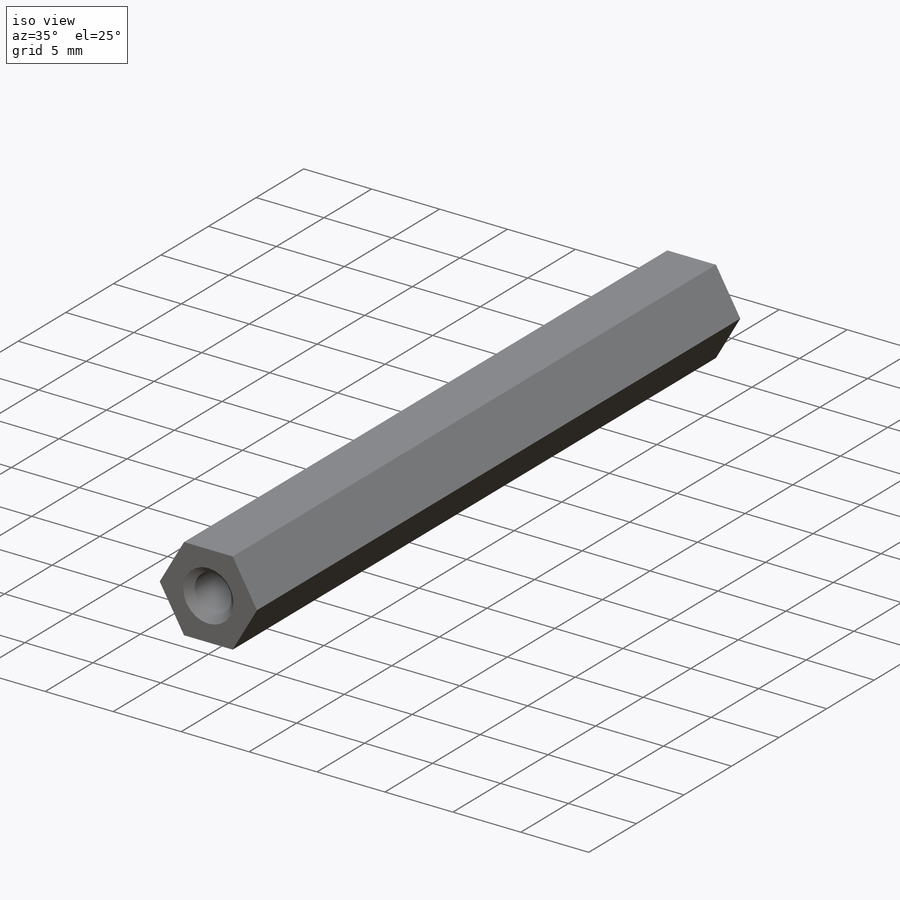
[diagram: iso view]
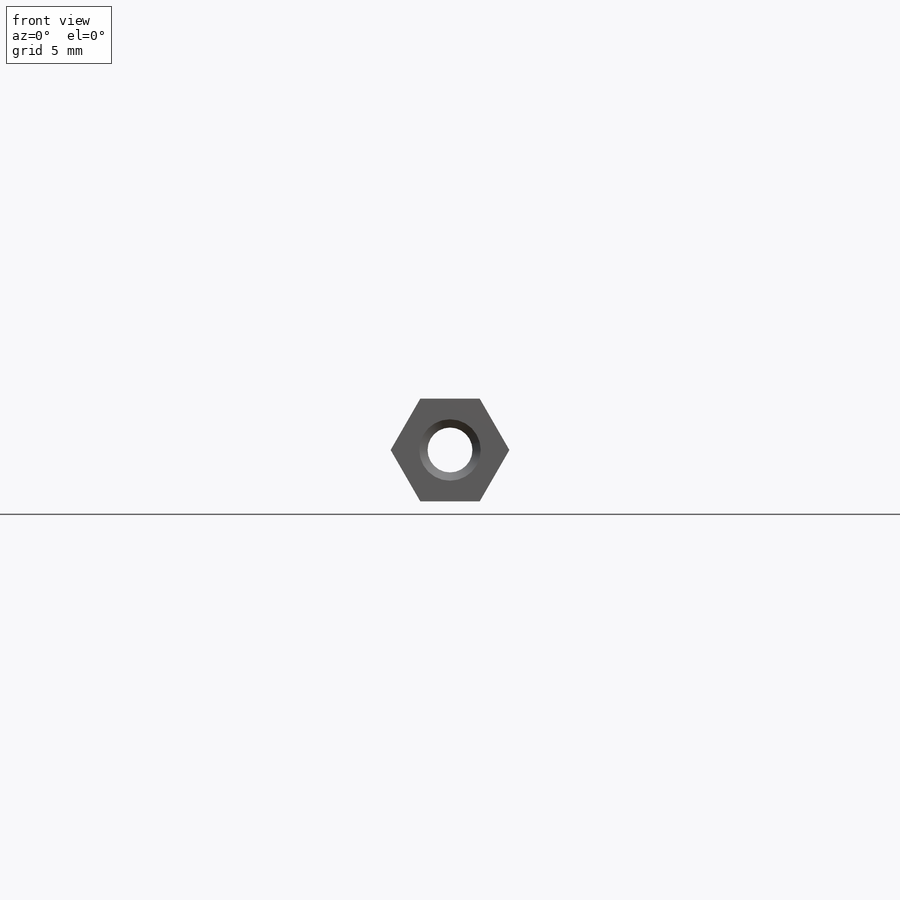
[diagram: front view]
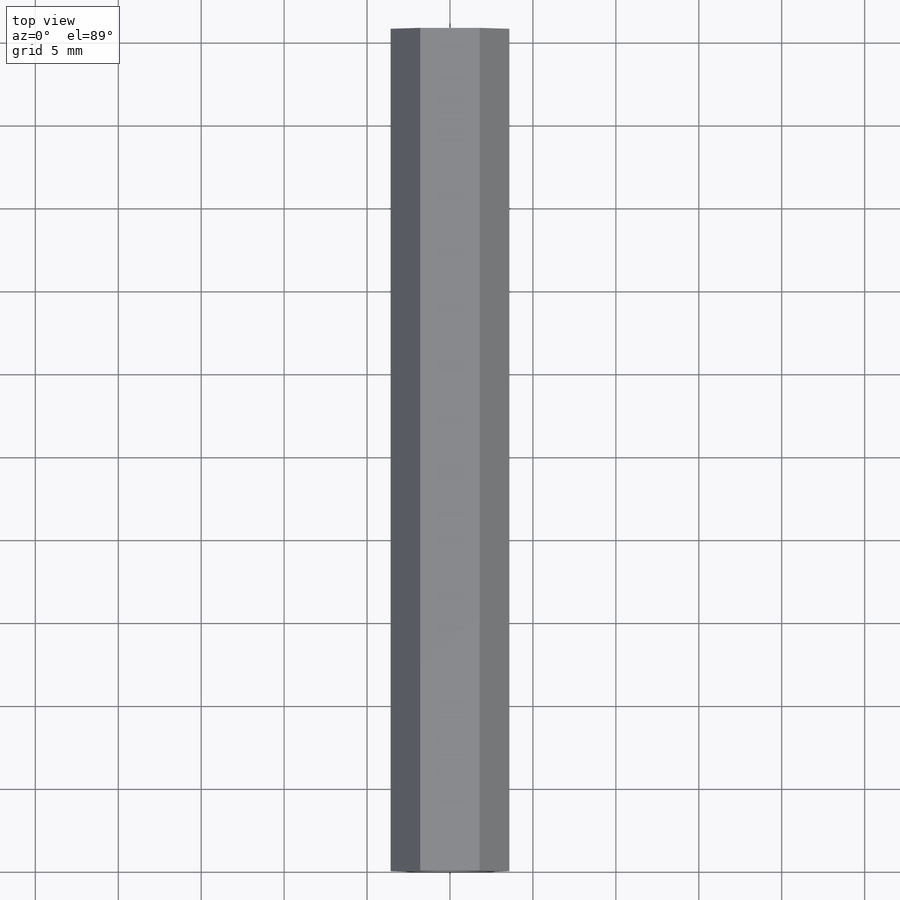
[diagram: top view]
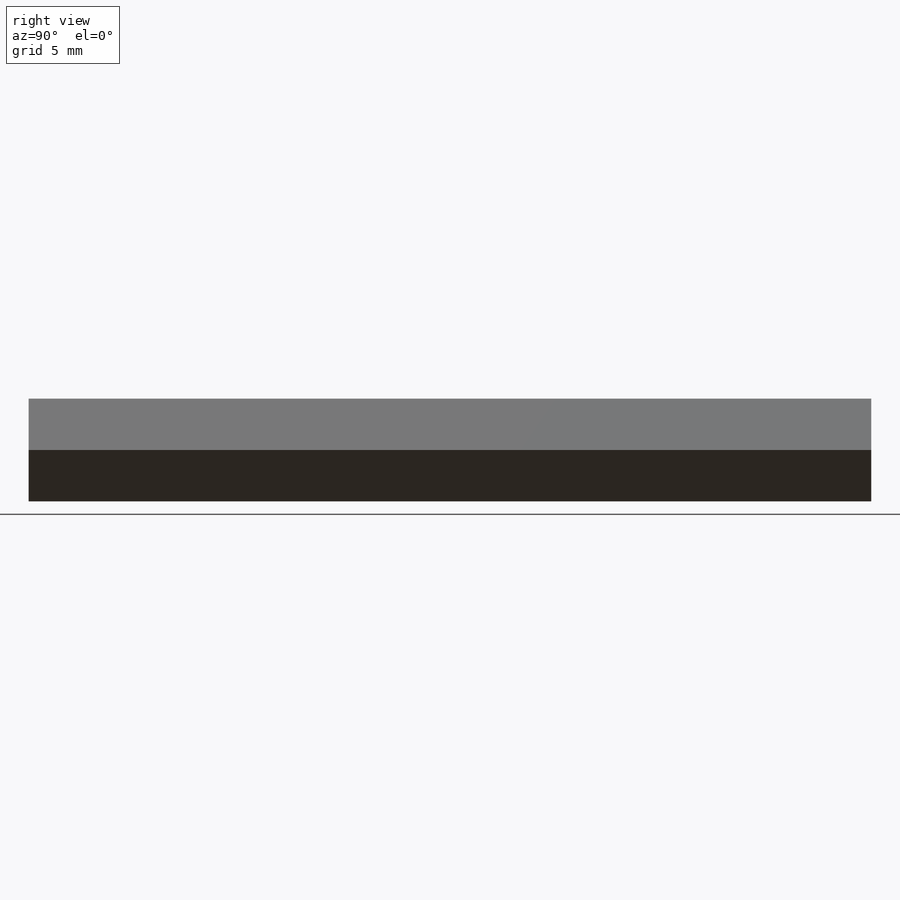
[diagram: right view]
SOLIDWORKS PART (.sldprt)
format: sldprt  version: not decoded by parser v0  size: 190,464 bytes
history: native  units: mm
features: sketch x4, chamfer x2, material x1, extrude x1, hole x1, thread x1, cut_extrude x1 (+17 scaffold rows collapsed)
feature tree (28):
  scaffold x17  (default folders/planes/origin — collapsed)
  material  "6061 Alloy"
  sketch  "Sketch1"  dims[c1.D1=6.2mm c1.D2=~4.985155mm c2.D2=~7.121136deg c2.D1=6.2mm c3.D2=6.2mm c3.D3=6.2mm c3.D1=7.1mm]
  extrude  "Extrude1"  Depth=50.8mm
  hole  "#6-32 Tapped Hole8"  Diameter=2.7051mm Depth=50.8mm
  sketch  "3DSketch13"  dims[D1=3.58mm D2=3.58mm]
  sketch  "Sketch27"  dims[hole-wizard template sketch: 60 standard entries collapsed; hole parameters kept: c18.Thru Tap Drill Depth=50.8mm]
  thread  "Hole Thread12"  Diameter=3.5052mm  [1 undecoded]
  chamfer  "Chamfer1"  Distance=0.5mm Angle=45deg
  chamfer  "Chamfer2"  Distance=0.5mm Angle=45deg
  sketch  "Sketch15"  dims[D1=3.0mm]
  cut_extrude  "Cut-Extrude1"  [1 undecoded]
decode coverage: 9 of 10 modeling features carry decoded parameters
note: ~ marks probable driven/reference dimensions
note: 2 parameter values undecoded
note: suppression state not decoded; provenance and decode notes live in map.json
